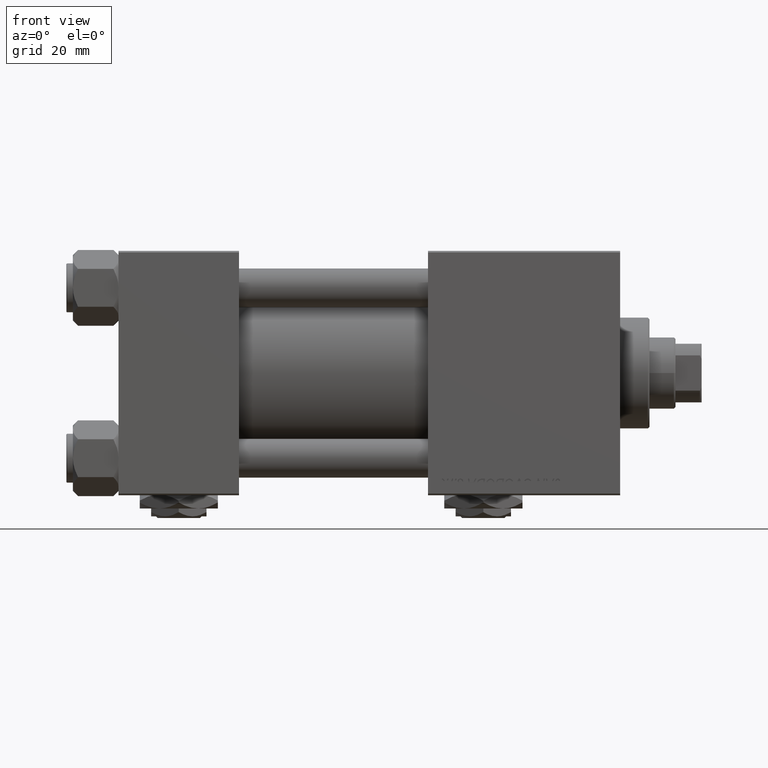
[diagram: clean part render]
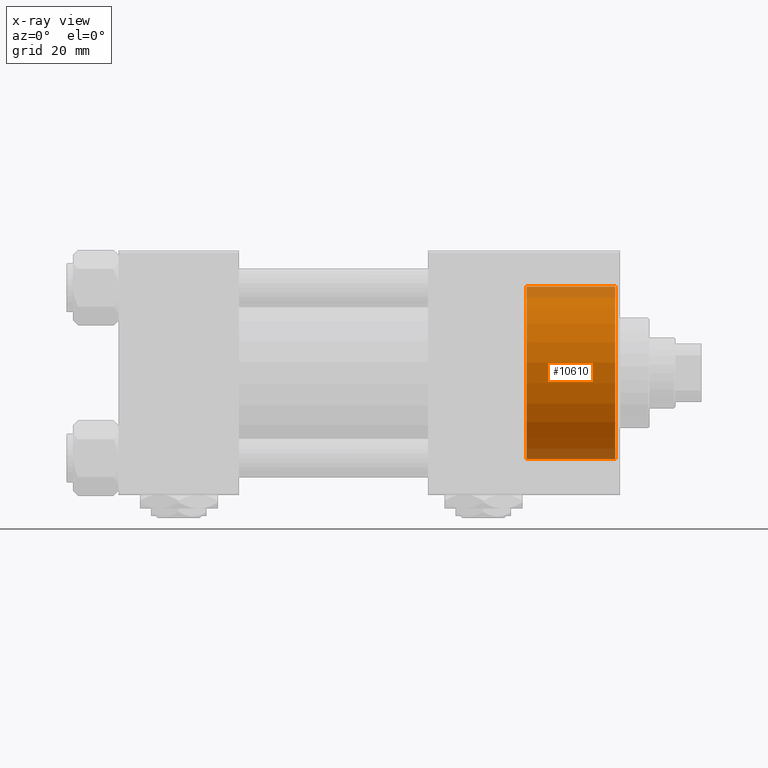
[diagram: x-ray — body ghosted, one internal face saturated and labeled with its STEP entity id]
A machine part, front view, then the same camera in x-ray: the body is ghosted and one INTERNAL B-rep face — a face not visible from any outside direction — is saturated and labeled: STEP entity #10610.
In plain terms, the highlighted cylindrical surface (partial cylindrical patch) has radius 26.5 mm, axis along (1, 0, 0).
Its self-contained STEP definition (entity closure, byte-faithful):
#839 = VECTOR ( 'NONE', #42346, 1000.000000000000000 ) ;
#1308 = DIRECTION ( 'NONE',  ( 1.000000000000000000, -0.000000000000000000, -0.000000000000000000 ) ) ;
#3045 = EDGE_CURVE ( 'NONE', #39101, #48596, #4591, .T. ) ;
#4591 = CIRCLE ( 'NONE', #42541, 26.50000000000000355 ) ;
#4743 = VECTOR ( 'NONE', #39116, 1000.000000000000000 ) ;
#5469 = CARTESIAN_POINT ( 'NONE',  ( 125.2999999999999972, 3.245314017740486554E-15, 26.50000000000000355 ) ) ;
#5929 = DIRECTION ( 'NONE',  ( 1.000000000000000000, 0.000000000000000000, 0.000000000000000000 ) ) ;
#7602 = EDGE_LOOP ( 'NONE', ( #7954, #8426, #20699, #8985 ) ) ;
#7954 = ORIENTED_EDGE ( 'NONE', *, *, #35277, .F. ) ;
#7983 = CARTESIAN_POINT ( 'NONE',  ( 152.5000000000000568, 3.245314017740486554E-15, 26.50000000000000355 ) ) ;
#8426 = ORIENTED_EDGE ( 'NONE', *, *, #30056, .T. ) ;
#8985 = ORIENTED_EDGE ( 'NONE', *, *, #11951, .F. ) ;
#9311 = LINE ( 'NONE', #38109, #839 ) ;
#9751 = CARTESIAN_POINT ( 'NONE',  ( 125.2999999999999972, 0.000000000000000000, 0.000000000000000000 ) ) ;
#10186 = AXIS2_PLACEMENT_3D ( 'NONE', #31250, #5929, #27028 ) ;
#10610 = ADVANCED_FACE ( 'NONE', ( #37487 ), #17390, .F. ) ;
#11350 = CARTESIAN_POINT ( 'NONE',  ( 125.2999999999999972, 0.000000000000000000, -26.50000000000000355 ) ) ;
#11951 = EDGE_CURVE ( 'NONE', #33911, #48596, #46790, .T. ) ;
#12553 = VERTEX_POINT ( 'NONE', #5469 ) ;
#17390 = CYLINDRICAL_SURFACE ( 'NONE', #44484, 26.50000000000000355 ) ;
#17766 = CARTESIAN_POINT ( 'NONE',  ( 125.2999999999999972, 0.000000000000000000, -26.50000000000000355 ) ) ;
#20296 = CIRCLE ( 'NONE', #10186, 26.50000000000000355 ) ;
#20699 = ORIENTED_EDGE ( 'NONE', *, *, #3045, .T. ) ;
#22619 = DIRECTION ( 'NONE',  ( 0.000000000000000000, 0.000000000000000000, -1.000000000000000000 ) ) ;
#27028 = DIRECTION ( 'NONE',  ( 0.000000000000000000, 0.000000000000000000, -1.000000000000000000 ) ) ;
#27093 = DIRECTION ( 'NONE',  ( 1.000000000000000000, 0.000000000000000000, 0.000000000000000000 ) ) ;
#28894 = CARTESIAN_POINT ( 'NONE',  ( 152.5000000000000568, 0.000000000000000000, -26.50000000000000355 ) ) ;
#30056 = EDGE_CURVE ( 'NONE', #12553, #39101, #9311, .T. ) ;
#31250 = CARTESIAN_POINT ( 'NONE',  ( 125.2999999999999972, 0.000000000000000000, 0.000000000000000000 ) ) ;
#33911 = VERTEX_POINT ( 'NONE', #17766 ) ;
#35277 = EDGE_CURVE ( 'NONE', #12553, #33911, #20296, .T. ) ;
#37487 = FACE_OUTER_BOUND ( 'NONE', #7602, .T. ) ;
#38109 = CARTESIAN_POINT ( 'NONE',  ( 125.2999999999999972, 3.245314017740486554E-15, 26.50000000000000355 ) ) ;
#38488 = CARTESIAN_POINT ( 'NONE',  ( 152.5000000000000568, 0.000000000000000000, 0.000000000000000000 ) ) ;
#39101 = VERTEX_POINT ( 'NONE', #7983 ) ;
#39116 = DIRECTION ( 'NONE',  ( 1.000000000000000000, -0.000000000000000000, -0.000000000000000000 ) ) ;
#42346 = DIRECTION ( 'NONE',  ( 1.000000000000000000, -0.000000000000000000, -0.000000000000000000 ) ) ;
#42541 = AXIS2_PLACEMENT_3D ( 'NONE', #38488, #27093, #50120 ) ;
#44484 = AXIS2_PLACEMENT_3D ( 'NONE', #9751, #1308, #22619 ) ;
#46790 = LINE ( 'NONE', #11350, #4743 ) ;
#48596 = VERTEX_POINT ( 'NONE', #28894 ) ;
#50120 = DIRECTION ( 'NONE',  ( 0.000000000000000000, 0.000000000000000000, 1.000000000000000000 ) ) ;